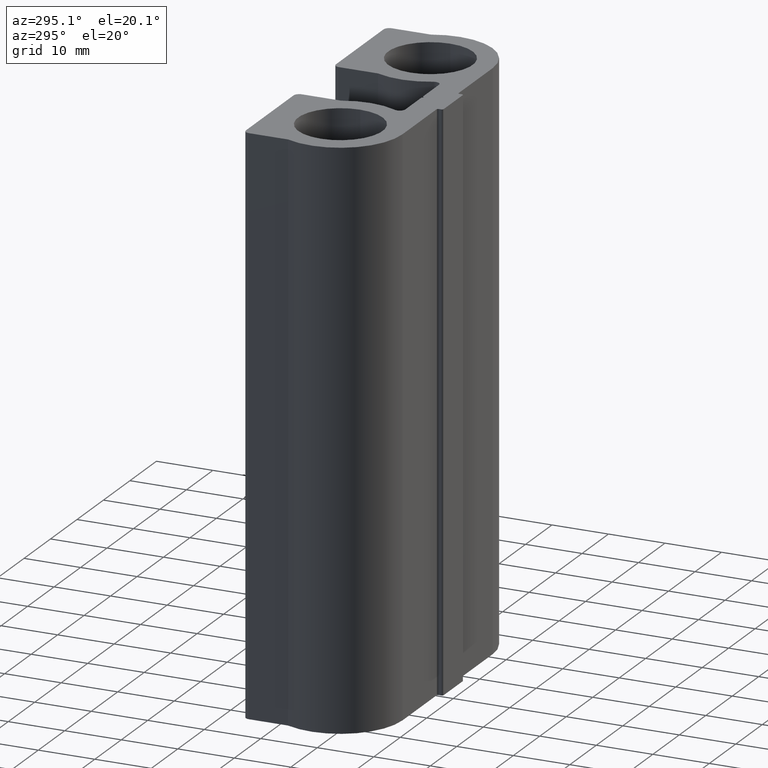
[diagram: clean part render]
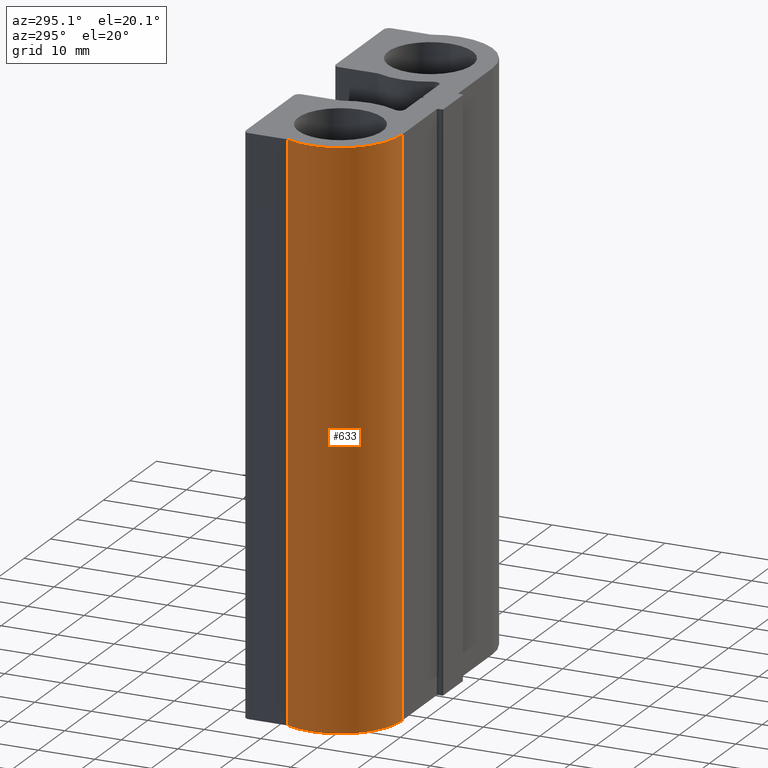
[diagram: same view with one face highlighted and labeled with its STEP entity id]
A machine part, auxiliary view. The second image highlights one B-rep face of the part: STEP entity #633.
In plain terms, the highlighted cylindrical surface (partial cylindrical patch) has radius 11 mm, axis along (0, 0, 1).
Its self-contained STEP definition (entity closure, byte-faithful):
#57=LINE('',#1035,#116);
#58=LINE('',#1041,#117);
#116=VECTOR('',#843,100.);
#117=VECTOR('',#850,100.);
#178=FACE_OUTER_BOUND('',#213,.T.);
#213=EDGE_LOOP('',(#497,#498,#499,#500));
#250=CIRCLE('',#691,10.9999748453875);
#251=CIRCLE('',#692,10.9999748453875);
#304=VERTEX_POINT('',#1031);
#305=VERTEX_POINT('',#1033);
#306=VERTEX_POINT('',#1037);
#307=VERTEX_POINT('',#1039);
#386=EDGE_CURVE('',#304,#305,#57,.T.);
#387=EDGE_CURVE('',#304,#306,#250,.T.);
#388=EDGE_CURVE('',#307,#305,#251,.T.);
#389=EDGE_CURVE('',#306,#307,#58,.T.);
#497=ORIENTED_EDGE('',*,*,#387,.F.);
#498=ORIENTED_EDGE('',*,*,#386,.T.);
#499=ORIENTED_EDGE('',*,*,#388,.F.);
#500=ORIENTED_EDGE('',*,*,#389,.F.);
#606=CYLINDRICAL_SURFACE('',#690,10.9999748453875);
#633=ADVANCED_FACE('',(#178),#606,.T.);
#690=AXIS2_PLACEMENT_3D('',#1036,#844,#845);
#691=AXIS2_PLACEMENT_3D('',#1038,#846,#847);
#692=AXIS2_PLACEMENT_3D('',#1040,#848,#849);
#843=DIRECTION('',(0.,0.,1.));
#844=DIRECTION('center_axis',(0.,0.,1.));
#845=DIRECTION('ref_axis',(0.909090838108012,-0.416597945347878,0.));
#846=DIRECTION('center_axis',(0.,0.,-1.));
#847=DIRECTION('ref_axis',(0.909090838108012,-0.416597945347878,0.));
#848=DIRECTION('center_axis',(0.,0.,1.));
#849=DIRECTION('ref_axis',(0.909090838108012,-0.416597945347878,0.));
#850=DIRECTION('',(0.,0.,1.));
#1031=CARTESIAN_POINT('',(-16.999966,1.00000562998479,0.));
#1033=CARTESIAN_POINT('',(-16.999966,1.00000562998479,100.));
#1035=CARTESIAN_POINT('',(-16.999966,1.00000562998479,0.));
#1036=CARTESIAN_POINT('Origin',(-16.999963928651,11.9999804753721,0.));
#1037=CARTESIAN_POINT('',(-26.9999402800114,16.5825473948389,0.));
#1038=CARTESIAN_POINT('Origin',(-16.999963928651,11.9999804753721,0.));
#1039=CARTESIAN_POINT('',(-26.9999402800114,16.5825473948389,100.));
#1040=CARTESIAN_POINT('Origin',(-16.999963928651,11.9999804753721,100.));
#1041=CARTESIAN_POINT('',(-26.9999402800114,16.5825473948389,0.));